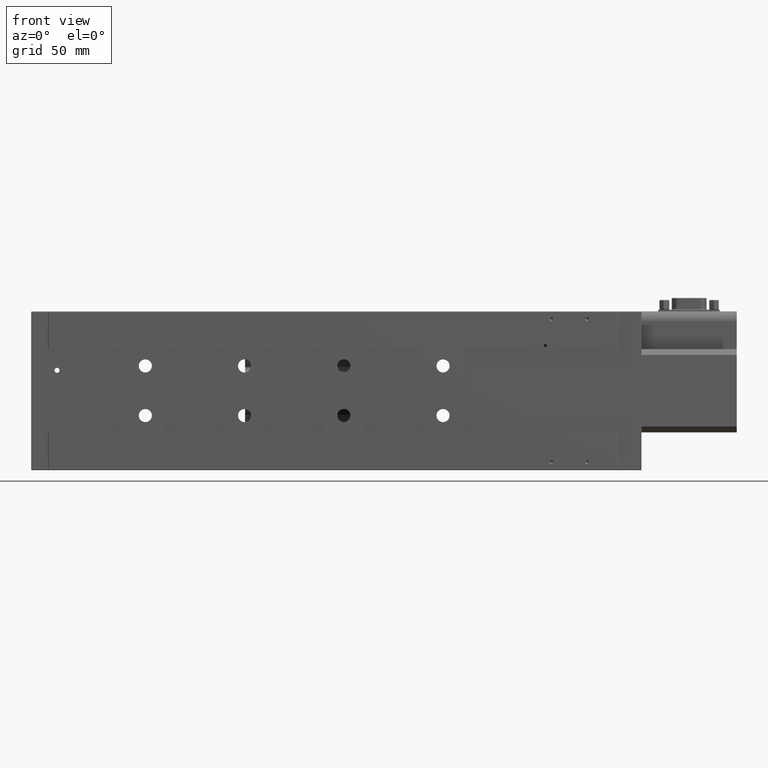
[diagram: clean part render]
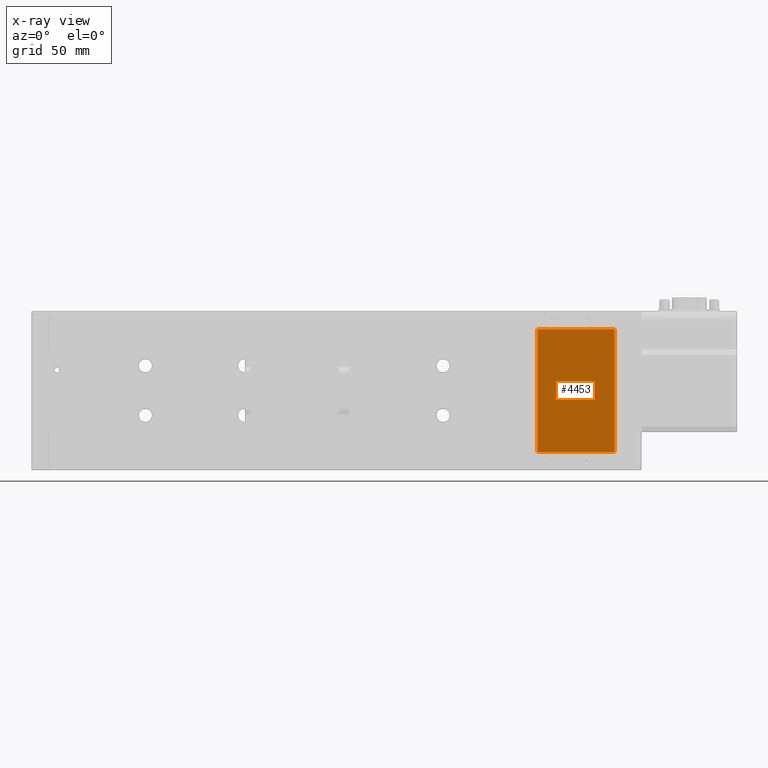
[diagram: x-ray — body ghosted, one internal face saturated and labeled with its STEP entity id]
A machine part, front view, then the same camera in x-ray: the body is ghosted and one INTERNAL B-rep face — a face not visible from any outside direction — is saturated and labeled: STEP entity #4453.
In plain terms, the highlighted planar face has unit normal (-0, 1, 0).
Its self-contained STEP definition (entity closure, byte-faithful):
#4453 = ADVANCED_FACE ( 'NONE', ( #6731 ), #29702, .F. ) ;
#5571 = CARTESIAN_POINT ( 'NONE',  ( 294.0000000000000600, 38.00000000000000700, -9.000000000000007100 ) ) ;
#6731 = FACE_OUTER_BOUND ( 'NONE', #100156, .T. ) ;
#8040 = DIRECTION ( 'NONE',  ( 0.0000000000000000000, 1.130547664322469200E-016, -1.000000000000000000 ) ) ;
#8624 = DIRECTION ( 'NONE',  ( 0.0000000000000000000, 1.130547664322469200E-016, -1.000000000000000000 ) ) ;
#11256 = VERTEX_POINT ( 'NONE', #11908 ) ;
#11908 = CARTESIAN_POINT ( 'NONE',  ( 294.0000000000000600, 38.00000000000001400, -71.00000000000001400 ) ) ;
#15487 = ORIENTED_EDGE ( 'NONE', *, *, #65669, .T. ) ;
#27536 = EDGE_CURVE ( 'NONE', #104240, #55228, #97449, .T. ) ;
#29702 = PLANE ( 'NONE',  #42586 ) ;
#37614 = DIRECTION ( 'NONE',  ( -1.000000000000000000, -5.909083931956453400E-018, 0.0000000000000000000 ) ) ;
#42586 = AXIS2_PLACEMENT_3D ( 'NONE', #67601, #66392, #37614 ) ;
#44981 = EDGE_CURVE ( 'NONE', #117081, #11256, #55007, .T. ) ;
#45689 = CARTESIAN_POINT ( 'NONE',  ( 255.0000000000000600, 38.00000000000001400, -73.00000000000001400 ) ) ;
#45868 = LINE ( 'NONE', #84604, #85658 ) ;
#46188 = VECTOR ( 'NONE', #8624, 1000.000000000000000 ) ;
#47246 = VECTOR ( 'NONE', #86307, 1000.000000000000000 ) ;
#47522 = EDGE_CURVE ( 'NONE', #55228, #11256, #45868, .T. ) ;
#51652 = CARTESIAN_POINT ( 'NONE',  ( 255.0000000000000600, 38.00000000000000700, -9.000000000000007100 ) ) ;
#55007 = LINE ( 'NONE', #120835, #46188 ) ;
#55228 = VERTEX_POINT ( 'NONE', #121855 ) ;
#65669 = EDGE_CURVE ( 'NONE', #117081, #104240, #88474, .T. ) ;
#66392 = DIRECTION ( 'NONE',  ( -5.909083931956453400E-018, 1.000000000000000000, 1.531653414840118200E-016 ) ) ;
#67601 = CARTESIAN_POINT ( 'NONE',  ( 294.0000000000000600, 38.00000000000001400, -73.00000000000001400 ) ) ;
#84604 = CARTESIAN_POINT ( 'NONE',  ( 294.0000000000000600, 38.00000000000001400, -71.00000000000001400 ) ) ;
#85658 = VECTOR ( 'NONE', #95303, 1000.000000000000000 ) ;
#86307 = DIRECTION ( 'NONE',  ( -1.000000000000000000, -5.909083931956453400E-018, 0.0000000000000000000 ) ) ;
#88474 = LINE ( 'NONE', #96176, #47246 ) ;
#88522 = ORIENTED_EDGE ( 'NONE', *, *, #44981, .F. ) ;
#95303 = DIRECTION ( 'NONE',  ( 1.000000000000000000, 5.909083931956453400E-018, -0.0000000000000000000 ) ) ;
#96176 = CARTESIAN_POINT ( 'NONE',  ( 255.0000000000000600, 38.00000000000000700, -9.000000000000007100 ) ) ;
#97449 = LINE ( 'NONE', #45689, #107703 ) ;
#100156 = EDGE_LOOP ( 'NONE', ( #88522, #15487, #118928, #107747 ) ) ;
#104240 = VERTEX_POINT ( 'NONE', #51652 ) ;
#107703 = VECTOR ( 'NONE', #8040, 1000.000000000000000 ) ;
#107747 = ORIENTED_EDGE ( 'NONE', *, *, #47522, .T. ) ;
#117081 = VERTEX_POINT ( 'NONE', #5571 ) ;
#118928 = ORIENTED_EDGE ( 'NONE', *, *, #27536, .T. ) ;
#120835 = CARTESIAN_POINT ( 'NONE',  ( 294.0000000000000600, 38.00000000000001400, -73.00000000000001400 ) ) ;
#121855 = CARTESIAN_POINT ( 'NONE',  ( 255.0000000000000600, 38.00000000000001400, -71.00000000000001400 ) ) ;